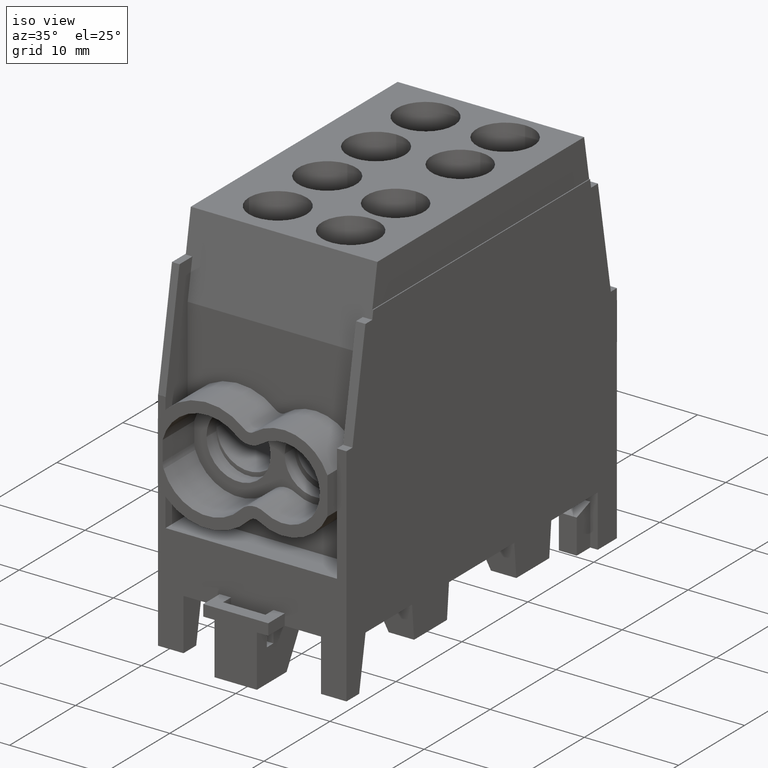
[diagram: clean part render]
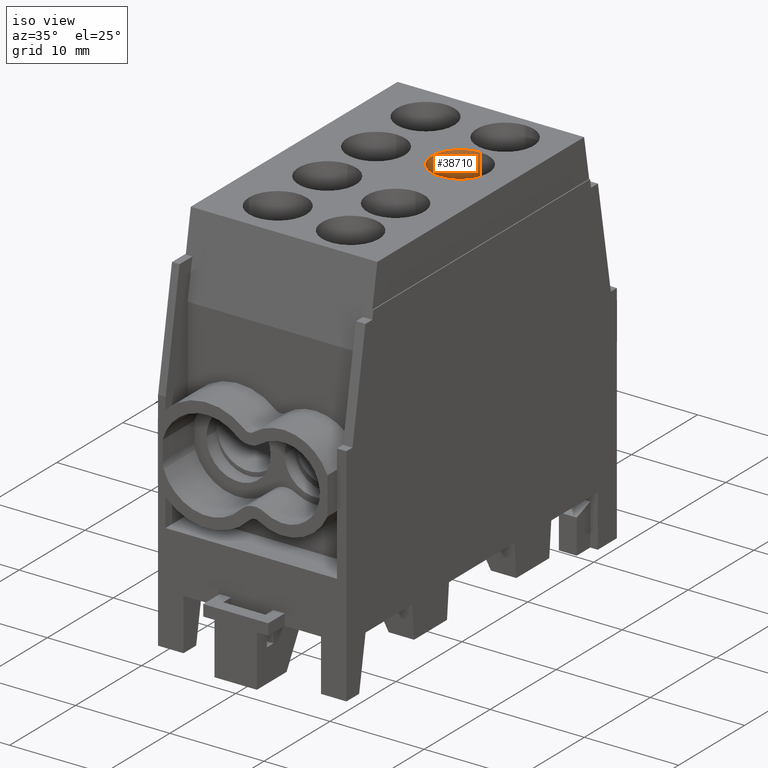
[diagram: same view with one face highlighted and labeled with its STEP entity id]
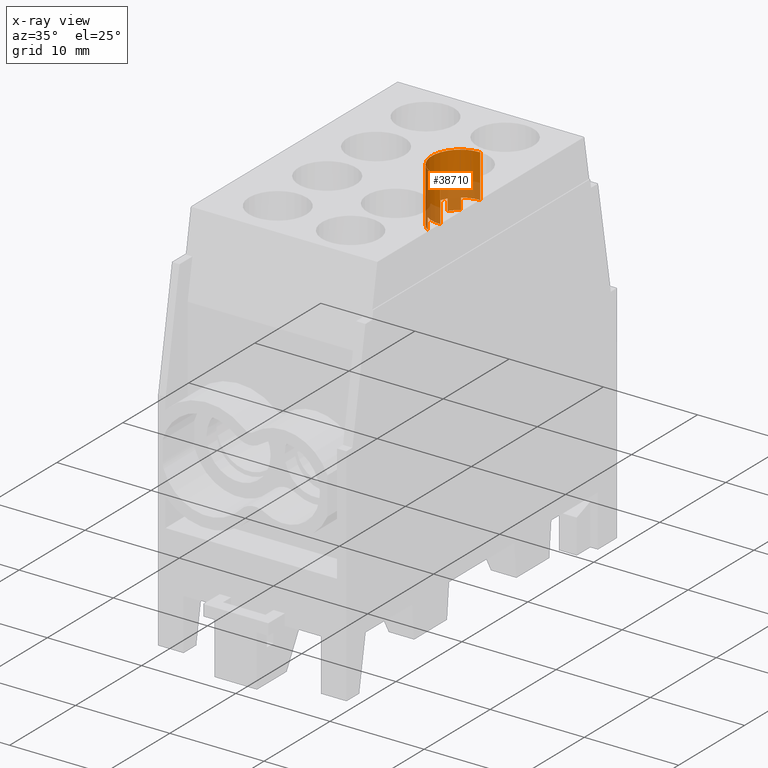
[diagram: x-ray of the same camera — body ghosted, the highlighted face saturated]
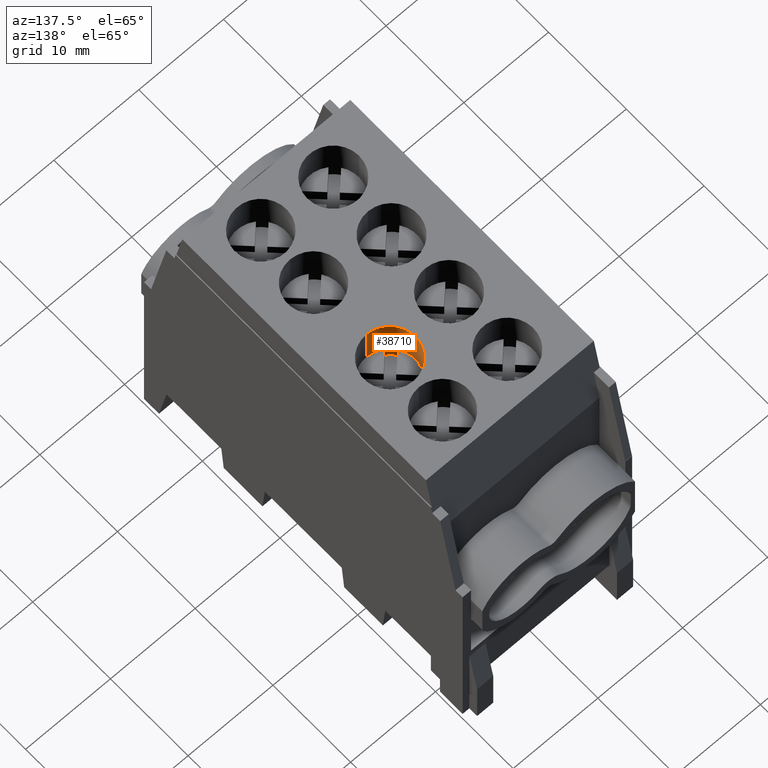
[diagram: same view with one face highlighted and labeled with its STEP entity id]
A machine part, iso view. The second image highlights one B-rep face of the part: STEP entity #38710.
The next image is the same camera in x-ray: the body ghosted, the highlighted face saturated — about 36% of this face is hidden behind the body in this view.
A second angle (auxiliary view) of the same face is appended — the face is thin or edge-on in the first view.
In plain terms, the highlighted cylindrical surface (edge-blend (fillet) strip) has radius 3.025 mm, axis along (0, 0, -1).
Its self-contained STEP definition (entity closure, byte-faithful):
#21710=CARTESIAN_POINT('',(0.179235871664883,6.57223599091124,
-5.545359338705));
#21720=VERTEX_POINT('',#21710);
#21790=CARTESIAN_POINT('',(0.207745720990363,3.18556318029557,
-5.545359338705));
#21800=VERTEX_POINT('',#21790);
#21830=CARTESIAN_POINT('',(2.69999999999999,4.89999999999999,
-5.545359338705));
#21840=DIRECTION('',(5.55111512312577E-17,7.04895318703268E-16,-1.));
#21850=DIRECTION('',(-5.71168456883603E-16,-1.,-7.04895318703268E-16));
#21860=AXIS2_PLACEMENT_3D('',#21830,#21840,#21850);
#21870=CIRCLE('',#21860,3.025);
#21880=EDGE_CURVE('',#21800,#21720,#21870,.T.);
#26110=CARTESIAN_POINT('',(2.69999999999999,4.89999999999999,
-0.945359338704999));
#26120=DIRECTION('',(5.55111512312577E-17,7.04895318703268E-16,-1.));
#26130=DIRECTION('',(-5.71168456883603E-16,-1.,-7.04895318703268E-16));
#26140=AXIS2_PLACEMENT_3D('',#26110,#26120,#26130);
#26150=CIRCLE('',#26140,3.025);
#26160=CARTESIAN_POINT('',(2.69999999999999,7.92499999999999,
-0.945359338704997));
#26170=VERTEX_POINT('',#26160);
#26180=CARTESIAN_POINT('',(2.69999999999999,1.87499999999999,
-0.945359338705001));
#26190=VERTEX_POINT('',#26180);
#26220=CARTESIAN_POINT('',(0.179235871664884,6.57223599091124,
-0.945359338704998));
#26230=VERTEX_POINT('',#26220);
#26240=EDGE_CURVE('',#26230,#26170,#26150,.T.);
#26260=EDGE_CURVE('',#26190,#26230,#26150,.T.);
#37960=CARTESIAN_POINT('',(2.69999999999999,4.89999999999999,
-0.945359338705));
#37970=DIRECTION('',(5.55111512312577E-17,7.04895318703268E-16,-1.));
#37980=DIRECTION('',(-5.71168456883603E-16,-1.,-7.04895318703268E-16));
#37990=AXIS2_PLACEMENT_3D('',#37960,#37970,#37980);
#38000=CYLINDRICAL_SURFACE('',#37990,3.025);
#38010=CARTESIAN_POINT('',(2.69999999999999,4.89999999999999,
-6.745359338705));
#38020=DIRECTION('',(5.55111512312577E-17,7.04895318703268E-16,-1.));
#38030=DIRECTION('',(-5.71168456883603E-16,-1.,-7.04895318703268E-16));
#38040=AXIS2_PLACEMENT_3D('',#38010,#38020,#38030);
#38050=CIRCLE('',#38040,3.025);
#38060=CARTESIAN_POINT('',(0.179235871664883,6.57223599091125,
-6.745359338705));
#38070=VERTEX_POINT('',#38060);
#38080=CARTESIAN_POINT('',(1.02776400908874,7.4207641283351,
-6.745359338705));
#38090=VERTEX_POINT('',#38080);
#38100=EDGE_CURVE('',#38070,#38090,#38050,.T.);
#38110=ORIENTED_EDGE('',*,*,#38100,.T.);
#38120=CARTESIAN_POINT('',(0.179235871664882,6.57223599091124,
-0.945359338704999));
#38130=DIRECTION('',(-5.55111512312577E-17,-7.04895318703268E-16,1.));
#38140=VECTOR('',#38130,1.);
#38150=LINE('',#38120,#38140);
#38160=EDGE_CURVE('',#38070,#21720,#38150,.T.);
#38170=ORIENTED_EDGE('',*,*,#38160,.F.);
#38180=ORIENTED_EDGE('',*,*,#21880,.T.);
#38190=CARTESIAN_POINT('',(0.207745720990363,3.18556318029557,
-0.945359338705001));
#38200=DIRECTION('',(-5.55111512312577E-17,-7.04895318703268E-16,1.));
#38210=VECTOR('',#38200,1.);
#38220=LINE('',#38190,#38210);
#38230=CARTESIAN_POINT('',(0.207745720990363,3.18556318029557,
-6.74535933870501));
#38240=VERTEX_POINT('',#38230);
#38250=EDGE_CURVE('',#38240,#21800,#38220,.T.);
#38260=ORIENTED_EDGE('',*,*,#38250,.T.);
#38270=CARTESIAN_POINT('',(0.985563180295568,2.40774572099037,
-6.74535933870501));
#38280=VERTEX_POINT('',#38270);
#38290=EDGE_CURVE('',#38280,#38240,#38050,.T.);
#38300=ORIENTED_EDGE('',*,*,#38290,.T.);
#38310=CARTESIAN_POINT('',(0.985563180295568,2.40774572099036,
-0.945359338705002));
#38320=DIRECTION('',(-5.55111512312577E-17,-7.04895318703268E-16,1.));
#38330=VECTOR('',#38320,1.);
#38340=LINE('',#38310,#38330);
#38350=CARTESIAN_POINT('',(0.985563180295567,2.40774572099037,
-5.545359338705));
#38360=VERTEX_POINT('',#38350);
#38370=EDGE_CURVE('',#38280,#38360,#38340,.T.);
#38380=ORIENTED_EDGE('',*,*,#38370,.F.);
#38390=CARTESIAN_POINT('',(2.69999999999999,1.87499999999999,
-5.545359338705));
#38400=VERTEX_POINT('',#38390);
#38410=EDGE_CURVE('',#38400,#38360,#21870,.T.);
#38420=ORIENTED_EDGE('',*,*,#38410,.T.);
#38430=CARTESIAN_POINT('',(2.69999999999999,1.87499999999999,
-0.945359338705002));
#38440=DIRECTION('',(5.55111512312577E-17,7.04895318703268E-16,-1.));
#38450=VECTOR('',#38440,1.);
#38460=LINE('',#38430,#38450);
#38470=EDGE_CURVE('',#26190,#38400,#38460,.T.);
#38480=ORIENTED_EDGE('',*,*,#38470,.T.);
#38490=ORIENTED_EDGE('',*,*,#26260,.F.);
#38500=ORIENTED_EDGE('',*,*,#26240,.F.);
#38510=CARTESIAN_POINT('',(2.69999999999999,7.92499999999999,
-0.945359338704998));
#38520=DIRECTION('',(5.55111512312577E-17,7.04895318703268E-16,-1.));
#38530=VECTOR('',#38520,1.);
#38540=LINE('',#38510,#38530);
#38550=CARTESIAN_POINT('',(2.69999999999999,7.92499999999999,
-5.545359338705));
#38560=VERTEX_POINT('',#38550);
#38570=EDGE_CURVE('',#26170,#38560,#38540,.T.);
#38580=ORIENTED_EDGE('',*,*,#38570,.F.);
#38590=CARTESIAN_POINT('',(1.02776400908874,7.4207641283351,
-5.545359338705));
#38600=VERTEX_POINT('',#38590);
#38610=EDGE_CURVE('',#38600,#38560,#21870,.T.);
#38620=ORIENTED_EDGE('',*,*,#38610,.T.);
#38630=CARTESIAN_POINT('',(1.02776400908874,7.42076412833509,
-0.945359338704998));
#38640=DIRECTION('',(-5.55111512312577E-17,-7.04895318703268E-16,1.));
#38650=VECTOR('',#38640,1.);
#38660=LINE('',#38630,#38650);
#38670=EDGE_CURVE('',#38090,#38600,#38660,.T.);
#38680=ORIENTED_EDGE('',*,*,#38670,.T.);
#38690=EDGE_LOOP('',(#38680,#38620,#38580,#38500,#38490,#38480,#38420,
#38380,#38300,#38260,#38180,#38170,#38110));
#38700=FACE_OUTER_BOUND('',#38690,.T.);
#38710=ADVANCED_FACE('',(#38700),#38000,.F.);